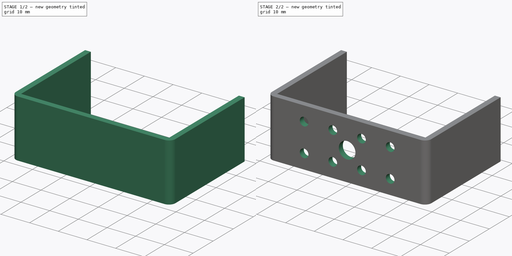
[diagram: build sequence overview — one tinted view per stage of 2, left to right]
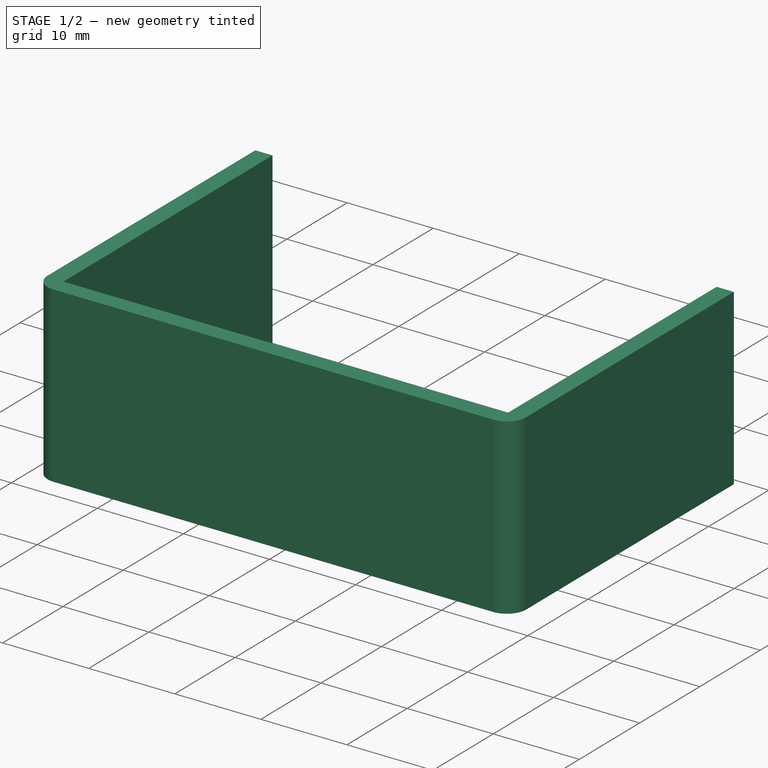
[diagram: stage 1 of 2 — iso view after this stage's code; geometry added in this stage tinted green]
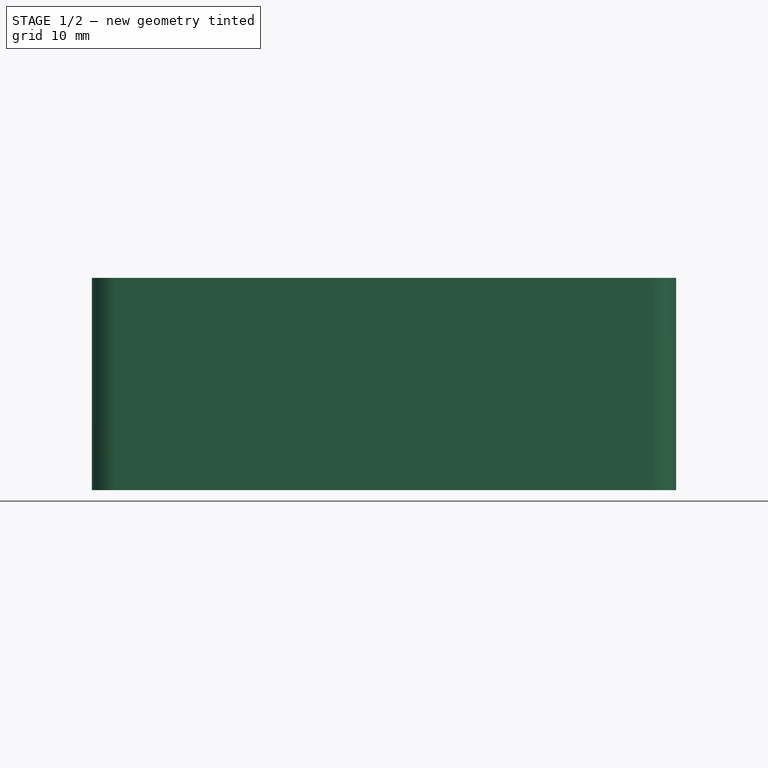
[diagram: stage 1 of 2 — front view after this stage's code; geometry added in this stage tinted green]
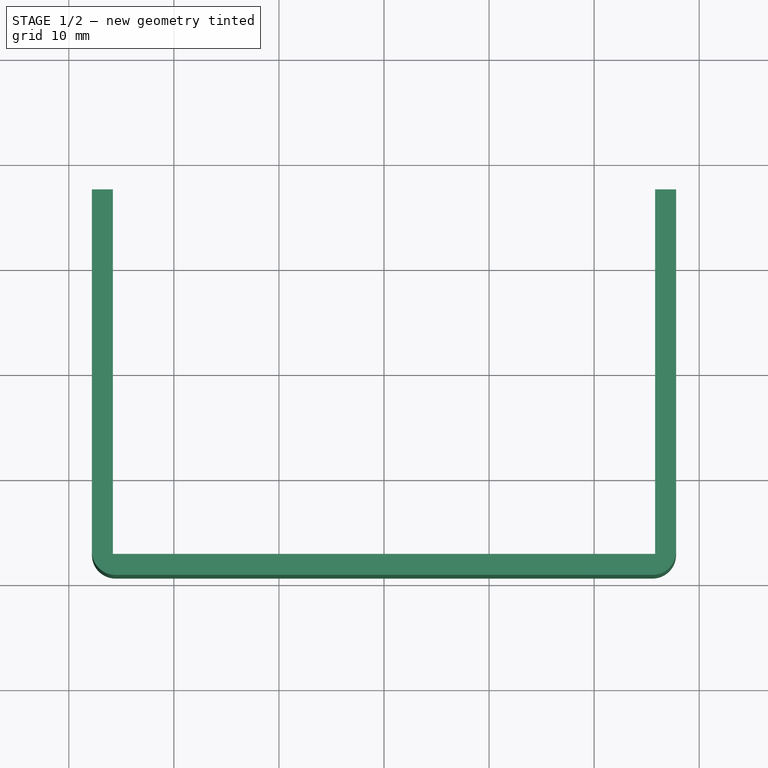
[diagram: stage 1 of 2 — top view after this stage's code; geometry added in this stage tinted green]
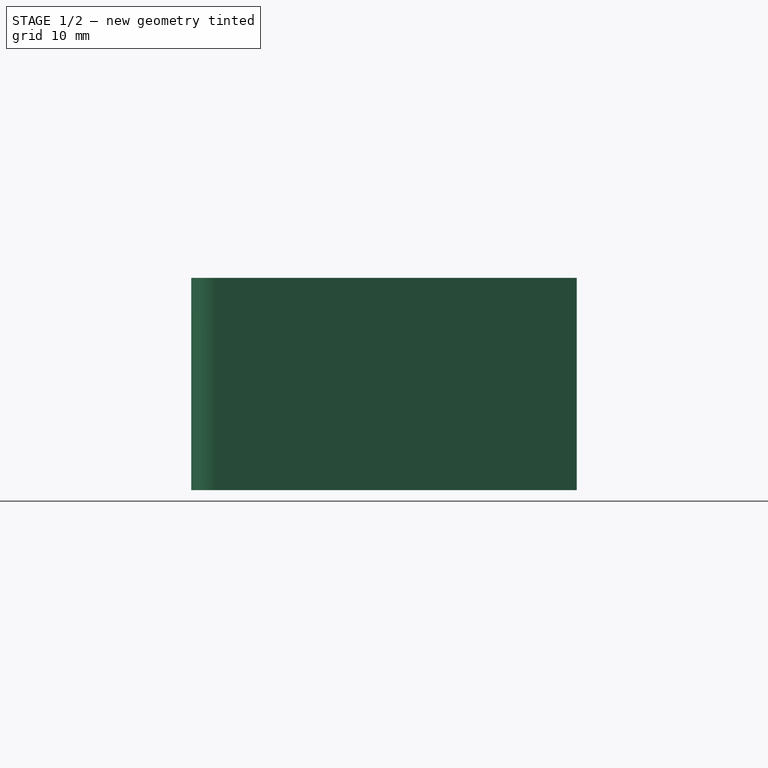
[diagram: stage 1 of 2 — right view after this stage's code; geometry added in this stage tinted green]
FCSTD DOCUMENT  (FreeCAD 0.17R13519 (Git))
Label: brazoLargo
License: CreativeCommons Attribution-ShareAlike
LicenseURL: http://creativecommons.org/licenses/by-sa/4.0/
objects: Sketcher::SketchObject×2, PartDesign::Pad×1, PartDesign::Pocket×1, PartDesign::Body×1
note: 7 computed .brp shape members not serialized (recipe doc carries the construction recipe); baked Part::Feature solids carry a one-line shape summary decoded from their .brp

FEATURE [Sketcher::SketchObject] Sketch
  MapMode = 5
  Support = -> [XY_Plane]
  sketch-geometry (10):
    g0: LineSegment StartX=-27.8 StartY=17.35 StartZ=0 EndX=-25.8 EndY=17.35 EndZ=0
    g1: LineSegment StartX=-25.8 StartY=17.35 StartZ=0 EndX=-25.8 EndY=-17.35 EndZ=0
    g2: LineSegment StartX=-25.8 StartY=-17.35 StartZ=0 EndX=25.8 EndY=-17.35 EndZ=0
    g3: LineSegment StartX=25.8 StartY=-17.35 StartZ=0 EndX=25.8 EndY=17.35 EndZ=0
    g4: LineSegment StartX=25.8 StartY=17.35 StartZ=0 EndX=27.8 EndY=17.35 EndZ=0
    g5: LineSegment StartX=27.8 StartY=17.35 StartZ=0 EndX=27.8 EndY=-17.1 EndZ=0
    g6: LineSegment StartX=25.55 StartY=-19.35 StartZ=0 EndX=-25.55 EndY=-19.35 EndZ=0
    g7: LineSegment StartX=-27.8 StartY=-17.1 StartZ=0 EndX=-27.8 EndY=17.35 EndZ=0
    g8: ArcOfCircle CenterX=-25.55 CenterY=-17.1 CenterZ=0 NormalX=0 NormalY=0 NormalZ=1 AngleXU=0 Radius=2.25 StartAngle=3.14159 EndAngle=4.71239
    g9: ArcOfCircle CenterX=25.55 CenterY=-17.1 CenterZ=0 NormalX=0 NormalY=0 NormalZ=1 AngleXU=0 Radius=2.25 StartAngle=4.71239 EndAngle=6.28319
  constraints (27):
    c: Horizontal(g0)
    c: Coincident(g0,g1)
    c: Vertical(g1)
    c: Coincident(g1,g2)
    c: Horizontal(g2)
    c: Coincident(g2,g3)
    c: Vertical(g3)
    c: Coincident(g3,g4)
    c: Coincident(g4,g5)
    c: Vertical(g5)
    c: Horizontal(g6)
    c: Coincident(g7,g0)
    c: Vertical(g7)
    c: Horizontal(g4)
    c: Equal(g0,g4)
    c: DistanceX(g0,g0) = 2
    c: Equal(g5,g7)
    c: Equal(g1,g3)
    c: Tangent(g7,g8) = 1.5708
    c: Tangent(g6,g8) = 1.5708
    c: Tangent(g5,g9) = 1.5708
    c: Tangent(g6,g9) = 1.5708
    c: Radius(g8) = 2.25
    c: DistanceY(g6,g1) = 2
    c: DistanceX(g7,g5) = 55.6
    c: DistanceY(g6,g0) = 36.7
    c: Symmetric(g1,g3,g-1)
FEATURE [PartDesign::Pad] Pad
  Length = 20.2
  Length2 = 100
  Profile = -> Sketch
  Type = 0
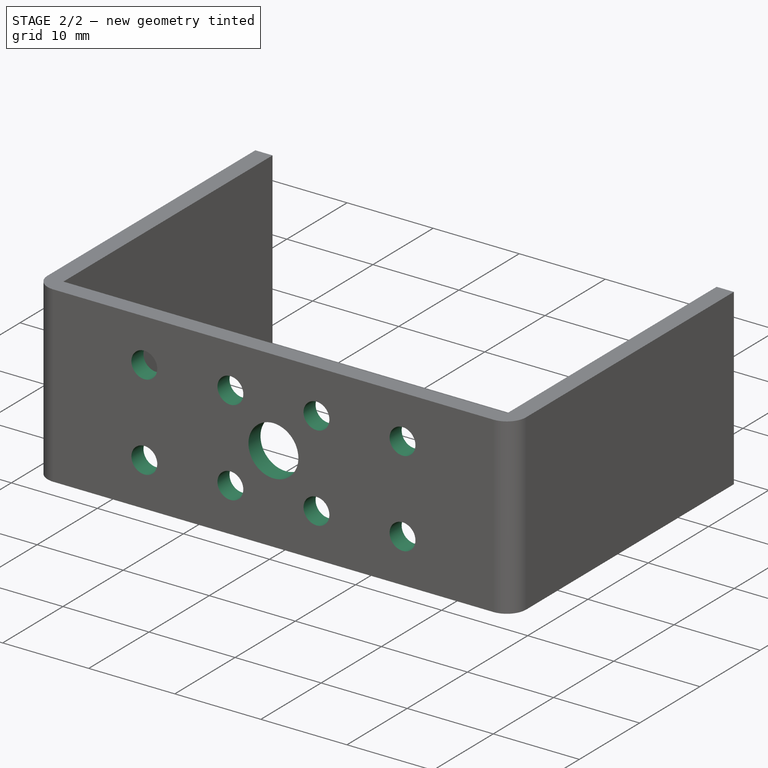
[diagram: stage 2 of 2 — iso view after this stage's code; geometry added in this stage tinted green]
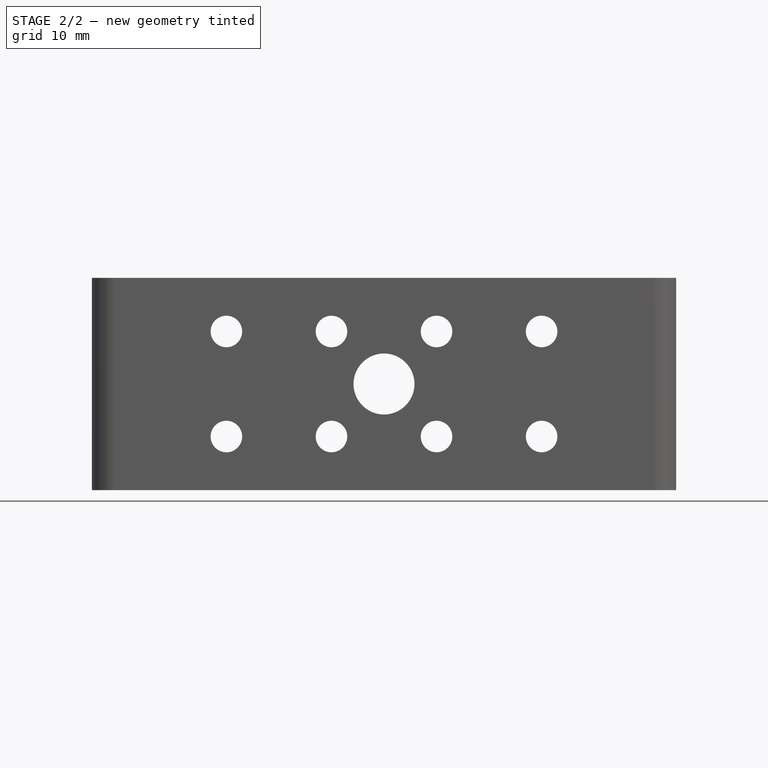
[diagram: stage 2 of 2 — front view after this stage's code; geometry added in this stage tinted green]
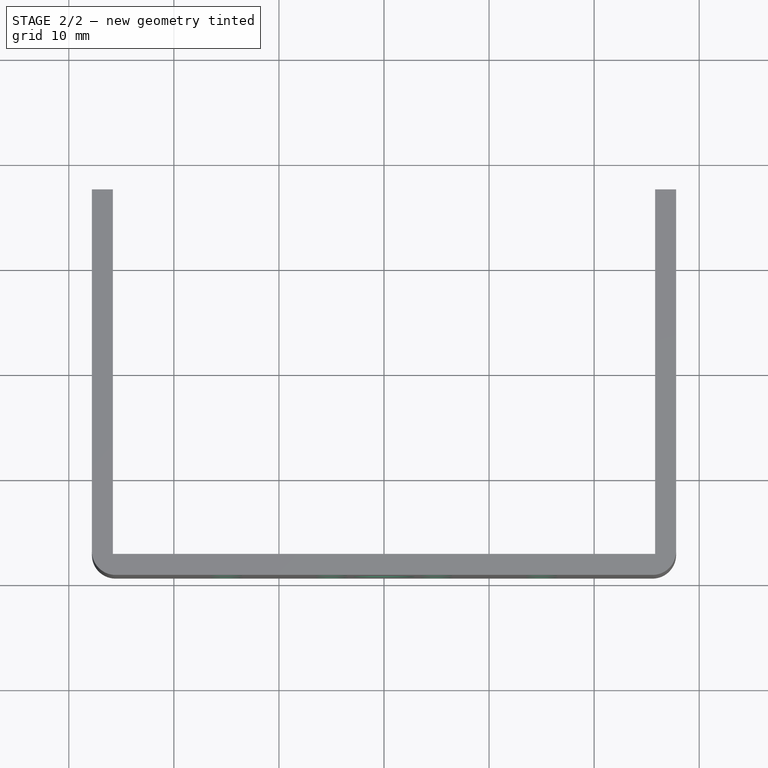
[diagram: stage 2 of 2 — top view after this stage's code; geometry added in this stage tinted green]
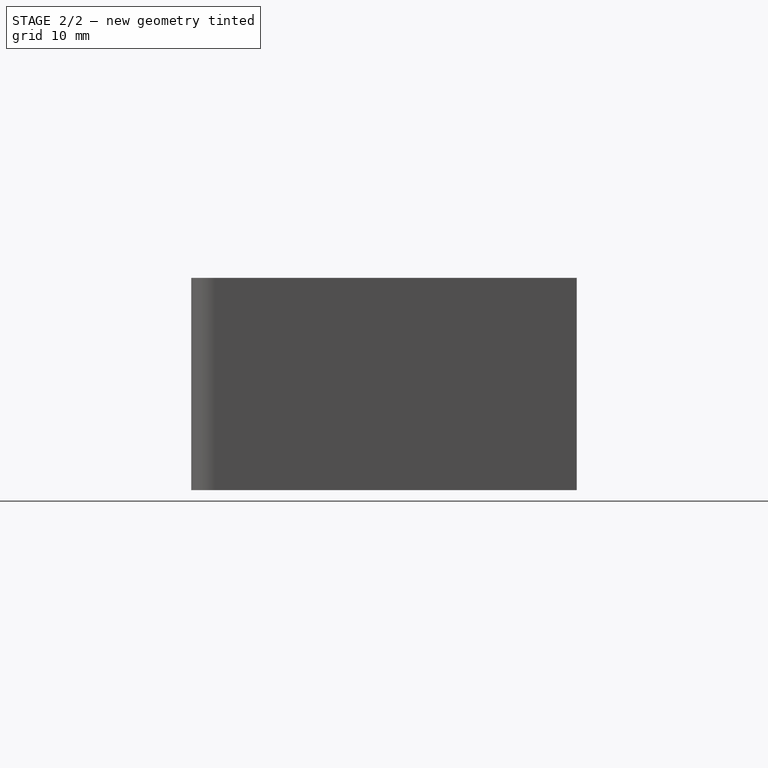
[diagram: stage 2 of 2 — right view after this stage's code; geometry added in this stage tinted green]
FEATURE [Sketcher::SketchObject] Sketch001
  ExternalGeometry = -> [Pad]
  MapMode = 5
  Placement = pos=(0,-19.35,0) rot=(1,0,0;1.5708rad)
  Support = -> [Pad]
  sketch-geometry (18):
    g0: LineSegment [constr] StartX=-29.5762 StartY=10.1 StartZ=0 EndX=31.3062 EndY=10.1 EndZ=0
    g1: Circle CenterX=0 CenterY=10.1 CenterZ=0 NormalX=0 NormalY=0 NormalZ=1 AngleXU=0 Radius=2.9
    g2: LineSegment [constr] StartX=-5 StartY=15.1 StartZ=0 EndX=5 EndY=15.1 EndZ=0
    g3: LineSegment [constr] StartX=5 StartY=15.1 StartZ=0 EndX=5 EndY=5.1 EndZ=0
    g4: LineSegment [constr] StartX=5 StartY=5.1 StartZ=0 EndX=-5 EndY=5.1 EndZ=0
    g5: LineSegment [constr] StartX=-5 StartY=5.1 StartZ=0 EndX=-5 EndY=15.1 EndZ=0
    g6: Circle CenterX=5 CenterY=15.1 CenterZ=0 NormalX=0 NormalY=0 NormalZ=1 AngleXU=0 Radius=1.5
    g7: Circle CenterX=-5 CenterY=15.1 CenterZ=0 NormalX=0 NormalY=0 NormalZ=1 AngleXU=0 Radius=1.5
    g8: Circle CenterX=-5 CenterY=5.1 CenterZ=0 NormalX=0 NormalY=0 NormalZ=1 AngleXU=0 Radius=1.5
    g9: Circle CenterX=5 CenterY=5.1 CenterZ=0 NormalX=0 NormalY=0 NormalZ=1 AngleXU=0 Radius=1.5
    g10: LineSegment [constr] StartX=-15 StartY=15.1 StartZ=0 EndX=15 EndY=15.1 EndZ=0
    g11: LineSegment [constr] StartX=15 StartY=15.1 StartZ=0 EndX=15 EndY=5.1 EndZ=0
    g12: LineSegment [constr] StartX=15 StartY=5.1 StartZ=0 EndX=-15 EndY=5.1 EndZ=0
    g13: LineSegment [constr] StartX=-15 StartY=5.1 StartZ=0 EndX=-15 EndY=15.1 EndZ=0
    g14: Circle CenterX=-15 CenterY=15.1 CenterZ=0 NormalX=0 NormalY=0 NormalZ=1 AngleXU=0 Radius=1.5
    g15: Circle CenterX=-15 CenterY=5.1 CenterZ=0 NormalX=0 NormalY=0 NormalZ=1 AngleXU=0 Radius=1.5
    g16: Circle CenterX=15 CenterY=15.1 CenterZ=0 NormalX=0 NormalY=0 NormalZ=1 AngleXU=0 Radius=1.5
    g17: Circle CenterX=15 CenterY=5.1 CenterZ=0 NormalX=0 NormalY=0 NormalZ=1 AngleXU=0 Radius=1.5
  constraints (46):
    c: Horizontal(g0)
    c: DistanceY(g-6,g-5) = 20.2
    c: DistanceY(g-6,g0) = 10.1
    c: PointOnObject(g1,g0)
    c: Radius(g1) = 2.9
    c: PointOnObject(g1,g-2)
    c: Coincident(g2,g3)
    c: Coincident(g3,g4)
    c: Coincident(g4,g5)
    c: Coincident(g5,g2)
    c: Horizontal(g2)
    c: Horizontal(g4)
    c: Vertical(g3)
    c: Vertical(g5)
    c: Equal(g2,g5)
    c: Equal(g5,g4)
    c: Equal(g4,g3)
    c: DistanceX(g2,g2) = 10
    c: Symmetric(g4,g2,g1)
    c: Coincident(g6,g2)
    c: Coincident(g7,g2)
    c: Coincident(g8,g4)
    c: Coincident(g9,g3)
    c: Equal(g7,g6)
    c: Equal(g6,g9)
    c: Equal(g9,g8)
    c: Radius(g7) = 1.5
    c: Coincident(g10,g11)
    c: Coincident(g11,g12)
    c: Coincident(g12,g13)
    c: Coincident(g13,g10)
    c: Horizontal(g10)
    c: Horizontal(g12)
    c: Vertical(g11)
    c: Vertical(g13)
    c: DistanceY(g11,g11) = 10
    c: DistanceX(g12,g12) = 30
    c: Symmetric(g10,g11,g1)
    c: Coincident(g14,g10)
    c: Coincident(g15,g12)
    c: Coincident(g16,g10)
    c: Coincident(g17,g11)
    c: Equal(g14,g7)
    c: Equal(g7,g15)
    c: Equal(g15,g17)
    c: Equal(g17,g16)
FEATURE [PartDesign::Pocket] Pocket
  BaseFeature = -> Pad
  Length = 5
  Length2 = 100
  Profile = -> Sketch001
  Type = 2
FEATURE [PartDesign::Body] Body
  Group = -> [Sketch,Pad,Sketch001,Pocket]
  Origin = -> Origin
  Tip = -> Pocket
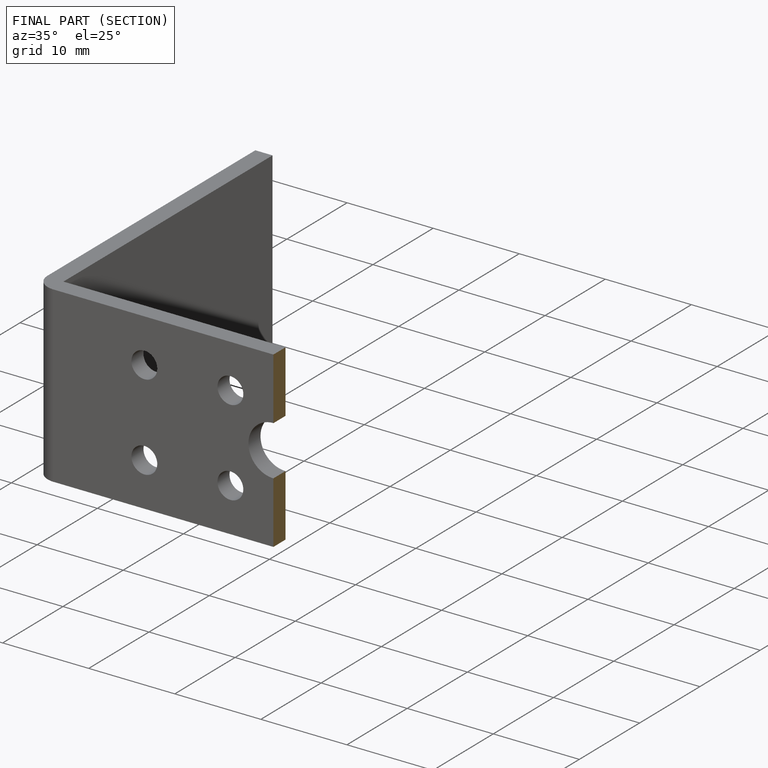
[diagram: finished part — half-section view (interior)]
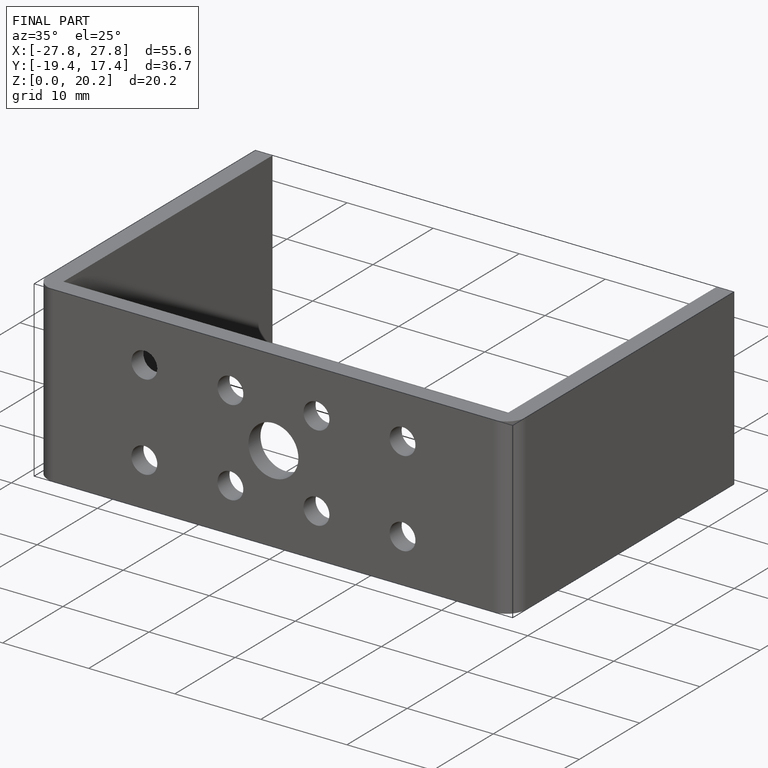
[diagram: finished part — iso view with bounding-box wireframe]
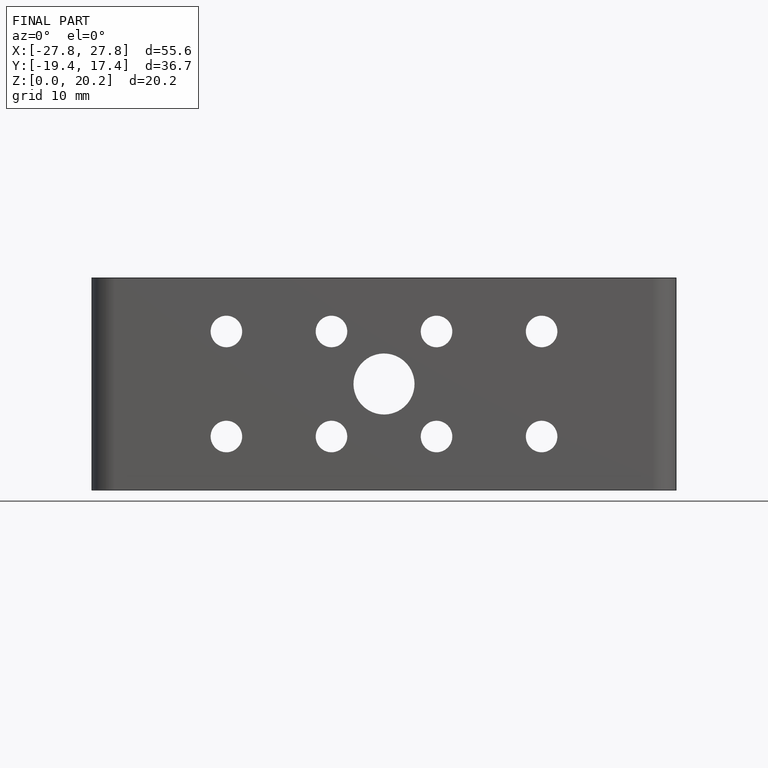
[diagram: finished part — front view with bounding-box wireframe]
